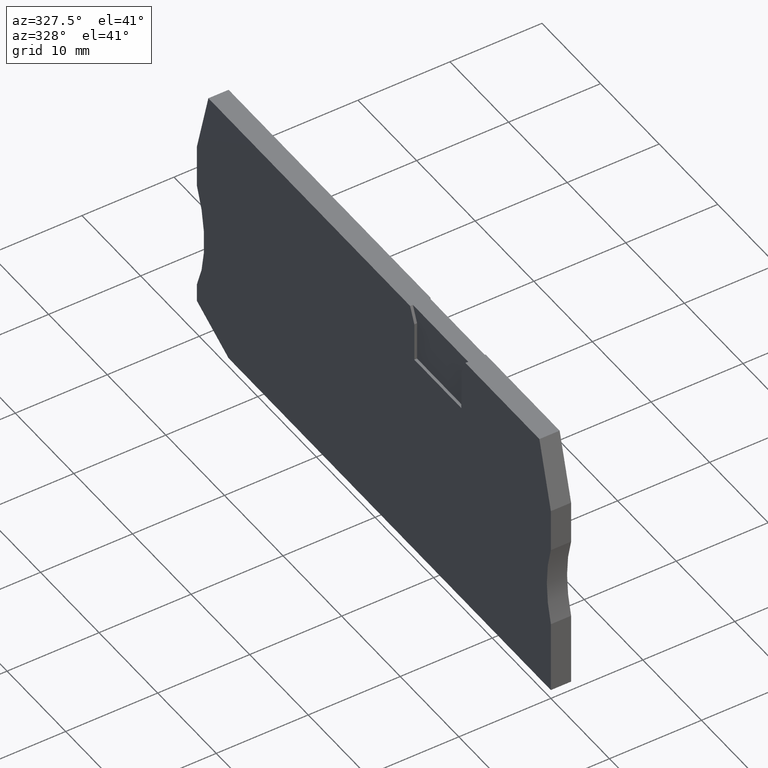
[diagram: clean part render]
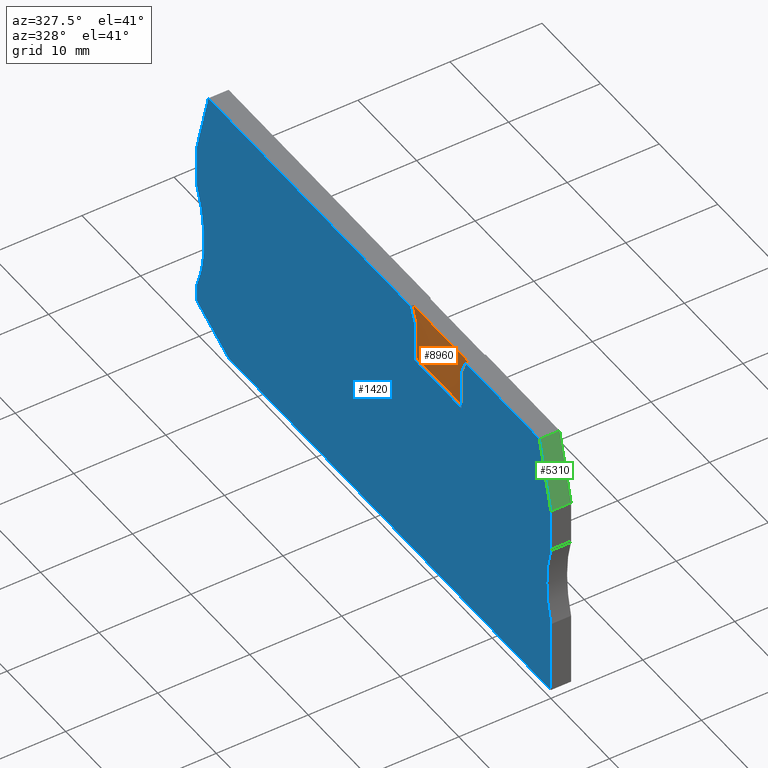
[diagram: same view with three faces highlighted in distinct colors, each labeled with its STEP entity id]
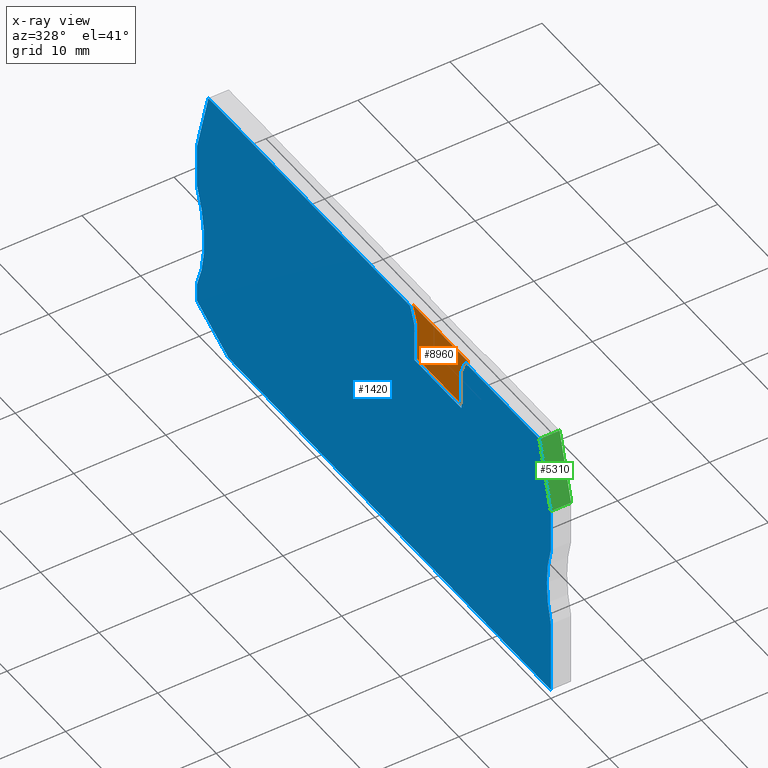
[diagram: x-ray of the same camera — body ghosted, the three highlighted faces saturated]
A machine part, auxiliary view with three faces highlighted in distinct colors.
The next image is the same camera in x-ray (body ghosted, the three faces saturated) — at least one of them is partly hidden behind the body in this view.
Their STEP definitions:

[orange] entity #8960 — the highlighted planar face has unit normal (-1, 0, 0).
#3080=CARTESIAN_POINT('',(-7.06783277832229,-15.1500000000048,53.47));
#3090=VERTEX_POINT('',#3080);
#3120=CARTESIAN_POINT('',(-7.06783277832108,-12.1300507694297,53.47));
#3130=DIRECTION('',(3.99736267046952E-13,1.,2.21898203726618E-29));
#3140=VECTOR('',#3130,1.);
#3150=LINE('',#3120,#3140);
#3160=CARTESIAN_POINT('',(-7.06783277832057,-10.8500000000082,53.47));
#3170=VERTEX_POINT('',#3160);
#3180=EDGE_CURVE('',#3090,#3170,#3150,.T.);
#3750=CARTESIAN_POINT('',(0.932167221677451,-15.150000000008,53.47));
#3760=VERTEX_POINT('',#3750);
#3790=CARTESIAN_POINT('',(11.4461541156297,-15.1500000000123,53.47));
#3800=DIRECTION('',(-1.,4.08951118151342E-13,-5.55111512312578E-17));
#3810=VECTOR('',#3800,1.);
#3820=LINE('',#3790,#3810);
#3830=EDGE_CURVE('',#3760,#3090,#3820,.T.);
#4300=CARTESIAN_POINT('',(-7.78633249760118,-9.14999999999962,53.47));
#4310=VERTEX_POINT('',#4300);
#4340=CARTESIAN_POINT('',(11.4461541156319,-9.14999999999962,53.47));
#4350=DIRECTION('',(-1.,0.,-5.55111512312578E-17));
#4360=VECTOR('',#4350,1.);
#4370=LINE('',#4340,#4360);
#4380=CARTESIAN_POINT('',(1.65066694096867,-9.14999999999962,53.47));
#4390=VERTEX_POINT('',#4380);
#4400=EDGE_CURVE('',#4390,#4310,#4370,.T.);
#8530=CARTESIAN_POINT('',(-6.52682329685444,-12.1300507694299,53.47));
#8540=DIRECTION('',(0.38930399708582,-0.921109330021689,
2.16107130571641E-17));
#8550=VECTOR('',#8540,1.);
#8560=LINE('',#8530,#8550);
#8570=EDGE_CURVE('',#4310,#3170,#8560,.T.);
#8710=CARTESIAN_POINT('',(7.8321672216793,-23.6749999999963,53.47));
#8720=DIRECTION('',(5.55111512312578E-17,0.,-1.));
#8730=DIRECTION('',(-1.,0.,-5.55111512312578E-17));
#8740=AXIS2_PLACEMENT_3D('',#8710,#8720,#8730);
#8750=PLANE('',#8740);
#8760=ORIENTED_EDGE('',*,*,#4400,.F.);
#8770=ORIENTED_EDGE('',*,*,#8570,.F.);
#8780=ORIENTED_EDGE('',*,*,#3180,.T.);
#8790=ORIENTED_EDGE('',*,*,#3830,.T.);
#8800=CARTESIAN_POINT('',(0.932167221678689,-12.130050769433,53.47));
#8810=DIRECTION('',(-4.09450718512422E-13,-1.,-2.27290807570902E-29));
#8820=VECTOR('',#8810,1.);
#8830=LINE('',#8800,#8820);
#8840=CARTESIAN_POINT('',(0.932167221679212,-10.8499999999587,53.47));
#8850=VERTEX_POINT('',#8840);
#8860=EDGE_CURVE('',#8850,#3760,#8830,.T.);
#8870=ORIENTED_EDGE('',*,*,#8860,.T.);
#8880=CARTESIAN_POINT('',(0.391157740170076,-12.1300507694327,53.47));
#8890=DIRECTION('',(0.389303997098565,0.921109330016302,
2.16107130578716E-17));
#8900=VECTOR('',#8890,1.);
#8910=LINE('',#8880,#8900);
#8920=EDGE_CURVE('',#8850,#4390,#8910,.T.);
#8930=ORIENTED_EDGE('',*,*,#8920,.F.);
#8940=EDGE_LOOP('',(#8930,#8870,#8790,#8780,#8770,#8760));
#8950=FACE_OUTER_BOUND('',#8940,.T.);
#8960=ADVANCED_FACE('',(#8950),#8750,.T.);

[blue] entity #1420 — the highlighted planar face has unit normal (-1, 0, 0).
#10=CARTESIAN_POINT('',(2.23216722167601,-10.1500000000022,53.17));
#20=DIRECTION('',(0.,0.,-1.));
#30=DIRECTION('',(-1.,0.,0.));
#40=AXIS2_PLACEMENT_3D('',#10,#20,#30);
#50=PLANE('',#40);
#60=CARTESIAN_POINT('',(-21.2061407460473,-12.1300507694245,53.17));
#70=DIRECTION('',(-0.258819045103118,-0.965925826288908,0.));
#80=VECTOR('',#70,1.);
#90=LINE('',#60,#80);
#100=CARTESIAN_POINT('',(-20.4076385489742,-9.14999999999962,53.17));
#110=VERTEX_POINT('',#100);
#120=CARTESIAN_POINT('',(-22.367832778321,-16.4655444566073,53.17));
#130=VERTEX_POINT('',#120);
#140=EDGE_CURVE('',#110,#130,#90,.T.);
#150=ORIENTED_EDGE('',*,*,#140,.F.);
#160=CARTESIAN_POINT('',(-22.367832778321,-12.1300507694245,53.17));
#170=DIRECTION('',(0.,-1.,0.));
#180=VECTOR('',#170,1.);
#190=LINE('',#160,#180);
#200=CARTESIAN_POINT('',(-22.367832778321,-21.2000000000008,53.17));
#210=VERTEX_POINT('',#200);
#220=EDGE_CURVE('',#130,#210,#190,.T.);
#230=ORIENTED_EDGE('',*,*,#220,.F.);
#240=CARTESIAN_POINT('',(-36.6769207995752,-25.7000000000007,53.17));
#250=DIRECTION('',(0.,0.,1.));
#260=DIRECTION('',(1.,0.,0.));
#270=AXIS2_PLACEMENT_3D('',#240,#250,#260);
#280=CIRCLE('',#270,15.);
#290=CARTESIAN_POINT('',(-22.367832778321,-30.2000000000007,53.17));
#300=VERTEX_POINT('',#290);
#310=EDGE_CURVE('',#300,#210,#280,.T.);
#320=ORIENTED_EDGE('',*,*,#310,.T.);
#330=CARTESIAN_POINT('',(-22.367832778321,-12.1300507694245,53.17));
#340=DIRECTION('',(0.,-1.,0.));
#350=VECTOR('',#340,1.);
#360=LINE('',#330,#350);
#370=CARTESIAN_POINT('',(-22.367832778321,-38.1999999999931,53.17));
#380=VERTEX_POINT('',#370);
#390=EDGE_CURVE('',#300,#380,#360,.T.);
#400=ORIENTED_EDGE('',*,*,#390,.F.);
#410=CARTESIAN_POINT('',(11.4461541156319,-38.1999999999931,53.17));
#420=DIRECTION('',(1.,0.,0.));
#430=VECTOR('',#420,1.);
#440=LINE('',#410,#430);
#450=CARTESIAN_POINT('',(32.6248762617011,-38.1999999999931,53.17));
#460=VERTEX_POINT('',#450);
#470=EDGE_CURVE('',#380,#460,#440,.T.);
#480=ORIENTED_EDGE('',*,*,#470,.F.);
#490=CARTESIAN_POINT('',(11.4461541156319,-49.9500920346854,53.17));
#500=DIRECTION('',(0.874435210897321,0.485142311021165,0.));
#510=VECTOR('',#500,1.);
#520=LINE('',#490,#510);
#530=CARTESIAN_POINT('',(38.0321672216792,-35.199999999998,53.17));
#540=VERTEX_POINT('',#530);
#550=EDGE_CURVE('',#460,#540,#520,.T.);
#560=ORIENTED_EDGE('',*,*,#550,.F.);
#570=CARTESIAN_POINT('',(38.0321672216792,-12.1300507694245,53.17));
#580=DIRECTION('',(0.,1.,0.));
#590=VECTOR('',#580,1.);
#600=LINE('',#570,#590);
#610=CARTESIAN_POINT('',(38.0321672216792,-33.2000000000007,53.17));
#620=VERTEX_POINT('',#610);
#630=EDGE_CURVE('',#540,#620,#600,.T.);
#640=ORIENTED_EDGE('',*,*,#630,.F.);
#650=CARTESIAN_POINT('',(51.7798943065467,-27.2000000000007,53.17));
#660=DIRECTION('',(0.,0.,1.));
#670=DIRECTION('',(1.,0.,0.));
#680=AXIS2_PLACEMENT_3D('',#650,#660,#670);
#690=CIRCLE('',#680,15.);
#700=CARTESIAN_POINT('',(38.0321672216792,-21.2000000000007,53.17));
#710=VERTEX_POINT('',#700);
#720=EDGE_CURVE('',#710,#620,#690,.T.);
#730=ORIENTED_EDGE('',*,*,#720,.T.);
#740=CARTESIAN_POINT('',(38.0321672216792,-12.1300507694245,53.17));
#750=DIRECTION('',(0.,1.,0.));
#760=VECTOR('',#750,1.);
#770=LINE('',#740,#760);
#780=CARTESIAN_POINT('',(38.0321672216792,-16.4655444566058,53.17));
#790=VERTEX_POINT('',#780);
#800=EDGE_CURVE('',#710,#790,#770,.T.);
#810=ORIENTED_EDGE('',*,*,#800,.F.);
#820=CARTESIAN_POINT('',(36.8704751894059,-12.1300507694245,53.17));
#830=DIRECTION('',(-0.258819045103111,0.96592582628891,0.));
#840=VECTOR('',#830,1.);
#850=LINE('',#820,#840);
#860=CARTESIAN_POINT('',(36.0719729923328,-9.14999999999962,53.17));
#870=VERTEX_POINT('',#860);
#880=EDGE_CURVE('',#790,#870,#850,.T.);
#890=ORIENTED_EDGE('',*,*,#880,.F.);
#900=CARTESIAN_POINT('',(11.4461541156319,-9.14999999999962,53.17));
#910=DIRECTION('',(-1.,0.,0.));
#920=VECTOR('',#910,1.);
#930=LINE('',#900,#920);
#940=CARTESIAN_POINT('',(1.65066694096867,-9.14999999999962,53.17));
#950=VERTEX_POINT('',#940);
#960=EDGE_CURVE('',#870,#950,#930,.T.);
#970=ORIENTED_EDGE('',*,*,#960,.F.);
#980=CARTESIAN_POINT('',(0.391157740173536,-12.1300507694245,53.17));
#990=DIRECTION('',(0.389303997098565,0.921109330016302,0.));
#1000=VECTOR('',#990,1.);
#1010=LINE('',#980,#1000);
#1020=CARTESIAN_POINT('',(0.932167221679212,-10.8499999999587,53.17));
#1030=VERTEX_POINT('',#1020);
#1040=EDGE_CURVE('',#1030,#950,#1010,.T.);
#1050=ORIENTED_EDGE('',*,*,#1040,.T.);
#1060=CARTESIAN_POINT('',(0.932167221678688,-12.1300507694245,53.17));
#1070=DIRECTION('',(4.09450718512422E-13,1.,0.));
#1080=VECTOR('',#1070,1.);
#1090=LINE('',#1060,#1080);
#1100=CARTESIAN_POINT('',(0.932167221677451,-15.150000000008,53.17));
#1110=VERTEX_POINT('',#1100);
#1120=EDGE_CURVE('',#1110,#1030,#1090,.T.);
#1130=ORIENTED_EDGE('',*,*,#1120,.T.);
#1140=CARTESIAN_POINT('',(11.4461541156319,-15.1500000000123,53.17));
#1150=DIRECTION('',(1.,-4.08951118151342E-13,0.));
#1160=VECTOR('',#1150,1.);
#1170=LINE('',#1140,#1160);
#1180=CARTESIAN_POINT('',(-7.06783277832229,-15.1500000000048,53.17));
#1190=VERTEX_POINT('',#1180);
#1200=EDGE_CURVE('',#1190,#1110,#1170,.T.);
#1210=ORIENTED_EDGE('',*,*,#1200,.T.);
#1220=CARTESIAN_POINT('',(-7.06783277832108,-12.1300507694245,53.17));
#1230=DIRECTION('',(-3.99736267046952E-13,-1.,0.));
#1240=VECTOR('',#1230,1.);
#1250=LINE('',#1220,#1240);
#1260=CARTESIAN_POINT('',(-7.06783277832057,-10.8500000000082,53.17));
#1270=VERTEX_POINT('',#1260);
#1280=EDGE_CURVE('',#1270,#1190,#1250,.T.);
#1290=ORIENTED_EDGE('',*,*,#1280,.T.);
#1300=CARTESIAN_POINT('',(-6.52682329685673,-12.1300507694245,53.17));
#1310=DIRECTION('',(0.38930399708582,-0.921109330021689,0.));
#1320=VECTOR('',#1310,1.);
#1330=LINE('',#1300,#1320);
#1340=CARTESIAN_POINT('',(-7.78633249760118,-9.14999999999962,53.17));
#1350=VERTEX_POINT('',#1340);
#1360=EDGE_CURVE('',#1350,#1270,#1330,.T.);
#1370=ORIENTED_EDGE('',*,*,#1360,.T.);
#1380=EDGE_CURVE('',#1350,#110,#930,.T.);
#1390=ORIENTED_EDGE('',*,*,#1380,.F.);
#1400=EDGE_LOOP('',(#1390,#1370,#1290,#1210,#1130,#1050,#970,#890,#810,
#730,#640,#560,#480,#400,#320,#230,#150));
#1410=FACE_OUTER_BOUND('',#1400,.T.);
#1420=ADVANCED_FACE('',(#1410),#50,.T.);

[green] entity #5310 — the highlighted planar face has unit normal (0, -0.9659, 0.2588).
#60=CARTESIAN_POINT('',(-21.2061407460473,-12.1300507694245,53.17));
#70=DIRECTION('',(-0.258819045103118,-0.965925826288908,0.));
#80=VECTOR('',#70,1.);
#90=LINE('',#60,#80);
#100=CARTESIAN_POINT('',(-20.4076385489742,-9.14999999999962,53.17));
#110=VERTEX_POINT('',#100);
#120=CARTESIAN_POINT('',(-22.367832778321,-16.4655444566073,53.17));
#130=VERTEX_POINT('',#120);
#140=EDGE_CURVE('',#110,#130,#90,.T.);
#2750=CARTESIAN_POINT('',(-22.367832778321,-16.4655444566073,55.37));
#2760=VERTEX_POINT('',#2750);
#2790=CARTESIAN_POINT('',(-21.2061407460473,-12.1300507694245,55.37));
#2800=DIRECTION('',(0.258819045103118,0.965925826288908,0.));
#2810=VECTOR('',#2800,1.);
#2820=LINE('',#2790,#2810);
#2830=CARTESIAN_POINT('',(-20.4076385489742,-9.14999999999962,55.37));
#2840=VERTEX_POINT('',#2830);
#2850=EDGE_CURVE('',#2760,#2840,#2820,.T.);
#4740=CARTESIAN_POINT('',(-20.4076385489742,-9.14999999999962,53.17));
#4750=DIRECTION('',(0.,0.,1.));
#4760=VECTOR('',#4750,1.);
#4770=LINE('',#4740,#4760);
#4780=EDGE_CURVE('',#110,#2840,#4770,.T.);
#5030=CARTESIAN_POINT('',(-22.367832778321,-16.4655444566073,53.17));
#5040=DIRECTION('',(0.,0.,1.));
#5050=VECTOR('',#5040,1.);
#5060=LINE('',#5030,#5050);
#5070=EDGE_CURVE('',#130,#2760,#5060,.T.);
#5200=CARTESIAN_POINT('',(-20.5069379681296,-9.52059047744864,55.37));
#5210=DIRECTION('',(-0.965925826288908,0.258819045103118,0.));
#5220=DIRECTION('',(0.258819045103118,0.965925826288908,0.));
#5230=AXIS2_PLACEMENT_3D('',#5200,#5210,#5220);
#5240=PLANE('',#5230);
#5250=ORIENTED_EDGE('',*,*,#5070,.T.);
#5260=ORIENTED_EDGE('',*,*,#140,.T.);
#5270=ORIENTED_EDGE('',*,*,#4780,.F.);
#5280=ORIENTED_EDGE('',*,*,#2850,.T.);
#5290=EDGE_LOOP('',(#5280,#5270,#5260,#5250));
#5300=FACE_OUTER_BOUND('',#5290,.T.);
#5310=ADVANCED_FACE('',(#5300),#5240,.T.);